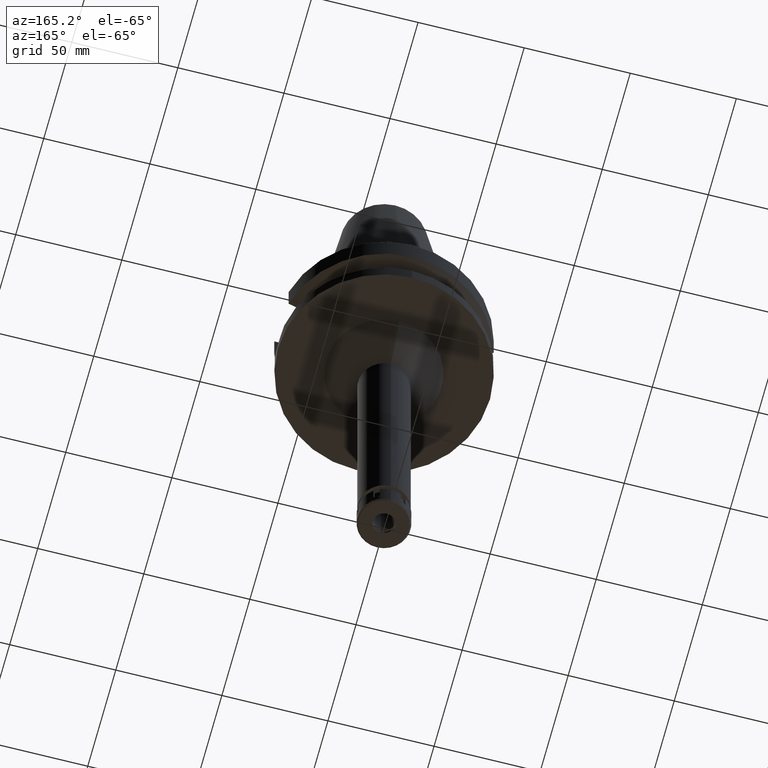
[diagram: clean part render]
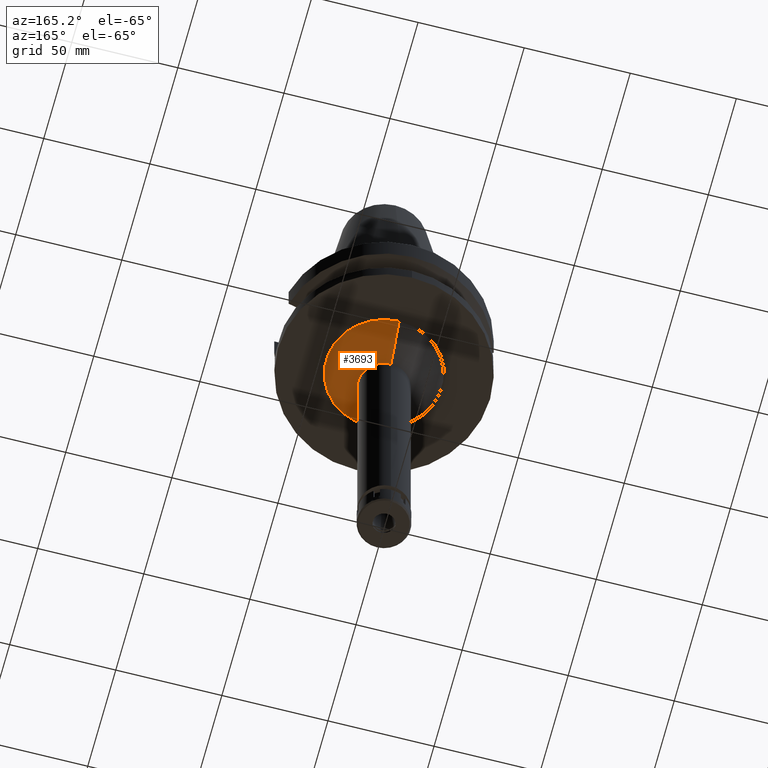
[diagram: same view with one face highlighted and labeled with its STEP entity id]
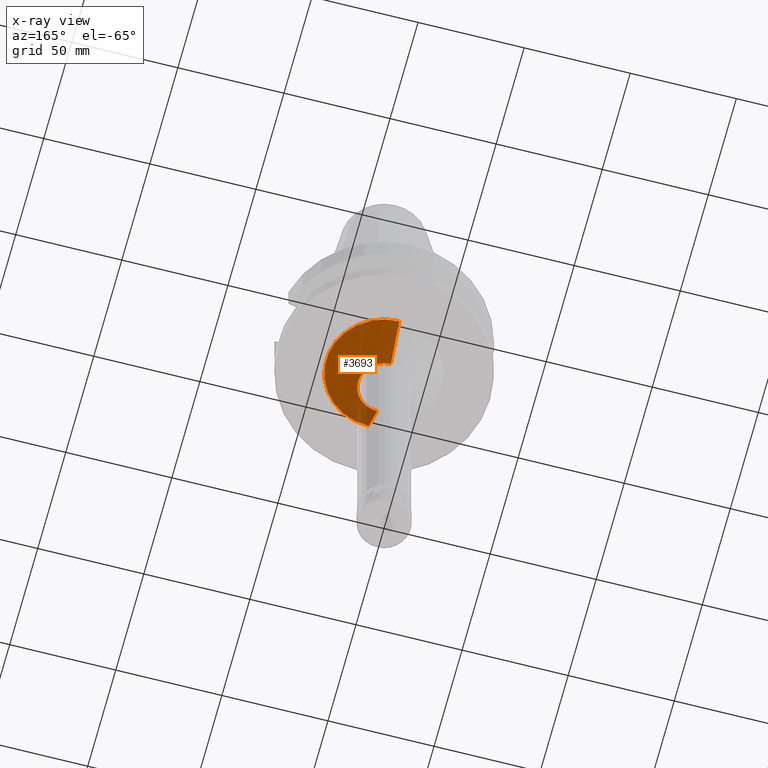
[diagram: x-ray of the same camera — body ghosted, the highlighted face saturated]
A machine part, auxiliary view. The second image highlights one B-rep face of the part: STEP entity #3693.
The next image is the same camera in x-ray: the body ghosted, the highlighted face saturated — about 7% of this face is hidden behind the body in this view.
In plain terms, the highlighted conical surface has half-angle 45 deg.
Its self-contained STEP definition (entity closure, byte-faithful):
#3 = DIRECTION ( 'NONE',  ( 0.0000000000000000000, 1.000000000000000000, 0.0000000000000000000 ) ) ;
#14 = DIRECTION ( 'NONE',  ( 0.0000000000000000000, 1.000000000000000000, 0.0000000000000000000 ) ) ;
#195 = EDGE_CURVE ( 'NONE', #2621, #3674, #524, .T. ) ;
#253 = CARTESIAN_POINT ( 'NONE',  ( 0.0000000000000000000, 0.0000000000000000000, -38.00000000000000000 ) ) ;
#313 = CARTESIAN_POINT ( 'NONE',  ( 0.0000000000000000000, -12.25000000000000000, -53.00000000000000000 ) ) ;
#395 = VECTOR ( 'NONE', #540, 1000.000000000000114 ) ;
#524 = CIRCLE ( 'NONE', #1594, 12.25000000000000000 ) ;
#540 = DIRECTION ( 'NONE',  ( 0.0000000000000000000, 0.7071067811865474617, -0.7071067811865474617 ) ) ;
#568 = DIRECTION ( 'NONE',  ( 0.0000000000000000000, 0.0000000000000000000, 1.000000000000000000 ) ) ;
#569 = VECTOR ( 'NONE', #1212, 1000.000000000000114 ) ;
#633 = CARTESIAN_POINT ( 'NONE',  ( 0.0000000000000000000, 0.0000000000000000000, -53.00000000000000000 ) ) ;
#697 = CONICAL_SURFACE ( 'NONE', #1114, 19.75000000000000000, 0.7853981633972997312 ) ;
#926 = CARTESIAN_POINT ( 'NONE',  ( 0.0000000000000000000, -27.25000000000000000, -38.00000000000000000 ) ) ;
#959 = ORIENTED_EDGE ( 'NONE', *, *, #1916, .T. ) ;
#1114 = AXIS2_PLACEMENT_3D ( 'NONE', #1203, #568, #3222 ) ;
#1168 = ORIENTED_EDGE ( 'NONE', *, *, #2191, .T. ) ;
#1203 = CARTESIAN_POINT ( 'NONE',  ( 0.0000000000000000000, 0.0000000000000000000, -45.50000000000000000 ) ) ;
#1212 = DIRECTION ( 'NONE',  ( 0.0000000000000000000, -0.7071067811865474617, -0.7071067811865474617 ) ) ;
#1594 = AXIS2_PLACEMENT_3D ( 'NONE', #633, #2579, #14 ) ;
#1736 = FACE_OUTER_BOUND ( 'NONE', #3531, .T. ) ;
#1916 = EDGE_CURVE ( 'NONE', #3233, #3674, #2858, .T. ) ;
#2087 = CARTESIAN_POINT ( 'NONE',  ( 0.0000000000000000000, 27.25000000000000000, -38.00000000000000000 ) ) ;
#2191 = EDGE_CURVE ( 'NONE', #3294, #3233, #2487, .T. ) ;
#2222 = DIRECTION ( 'NONE',  ( 0.0000000000000000000, 0.0000000000000000000, -1.000000000000000000 ) ) ;
#2249 = CARTESIAN_POINT ( 'NONE',  ( 0.0000000000000000000, -27.25000000000000000, -38.00000000000000000 ) ) ;
#2487 = CIRCLE ( 'NONE', #3679, 27.25000000000000000 ) ;
#2579 = DIRECTION ( 'NONE',  ( 0.0000000000000000000, 0.0000000000000000000, -1.000000000000000000 ) ) ;
#2588 = CARTESIAN_POINT ( 'NONE',  ( 0.0000000000000000000, 27.25000000000000000, -38.00000000000000000 ) ) ;
#2621 = VERTEX_POINT ( 'NONE', #3349 ) ;
#2858 = LINE ( 'NONE', #2249, #395 ) ;
#2948 = LINE ( 'NONE', #2087, #569 ) ;
#3062 = ORIENTED_EDGE ( 'NONE', *, *, #195, .F. ) ;
#3065 = EDGE_CURVE ( 'NONE', #3294, #2621, #2948, .T. ) ;
#3220 = ORIENTED_EDGE ( 'NONE', *, *, #3065, .F. ) ;
#3222 = DIRECTION ( 'NONE',  ( 0.0000000000000000000, 1.000000000000000000, 0.0000000000000000000 ) ) ;
#3233 = VERTEX_POINT ( 'NONE', #926 ) ;
#3294 = VERTEX_POINT ( 'NONE', #2588 ) ;
#3349 = CARTESIAN_POINT ( 'NONE',  ( 0.0000000000000000000, 12.25000000000000000, -53.00000000000000000 ) ) ;
#3531 = EDGE_LOOP ( 'NONE', ( #1168, #959, #3062, #3220 ) ) ;
#3674 = VERTEX_POINT ( 'NONE', #313 ) ;
#3679 = AXIS2_PLACEMENT_3D ( 'NONE', #253, #2222, #3 ) ;
#3693 = ADVANCED_FACE ( 'NONE', ( #1736 ), #697, .T. ) ;